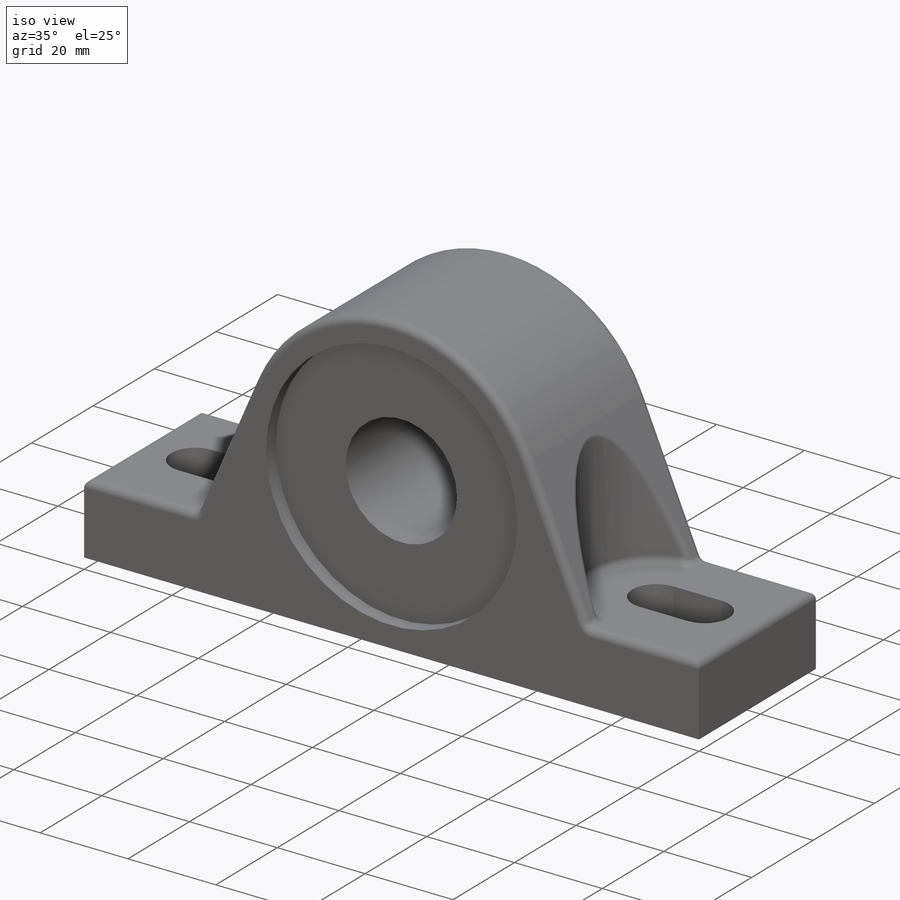
[diagram: iso view]
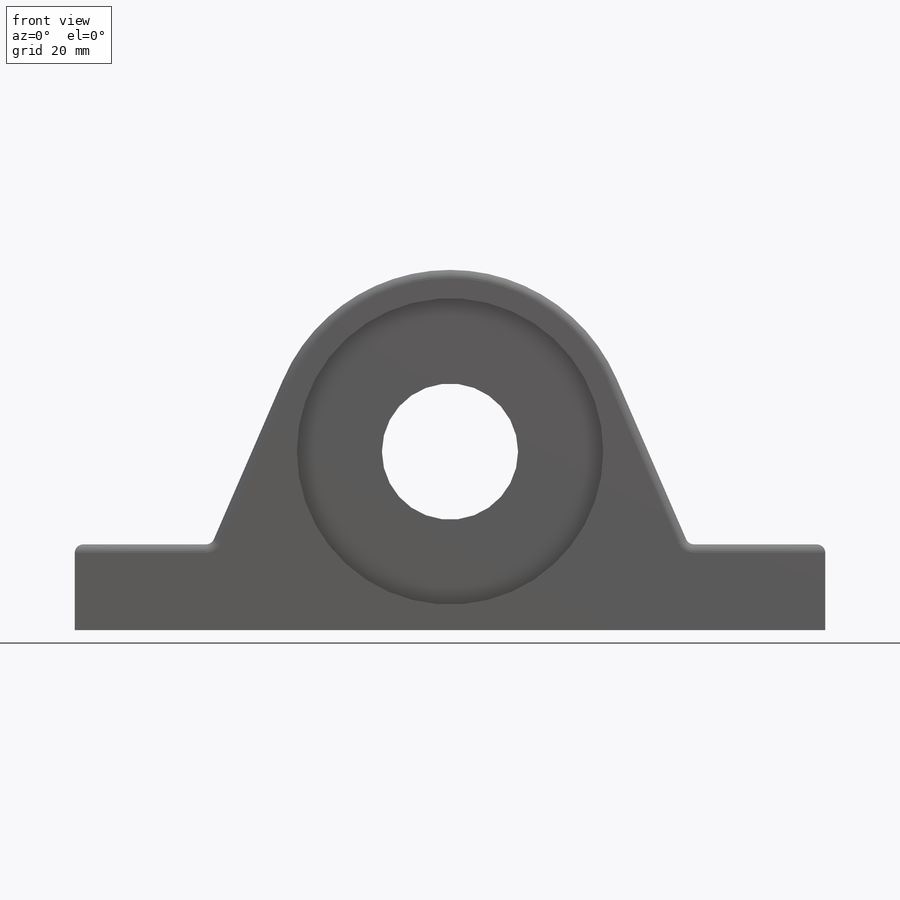
[diagram: front view]
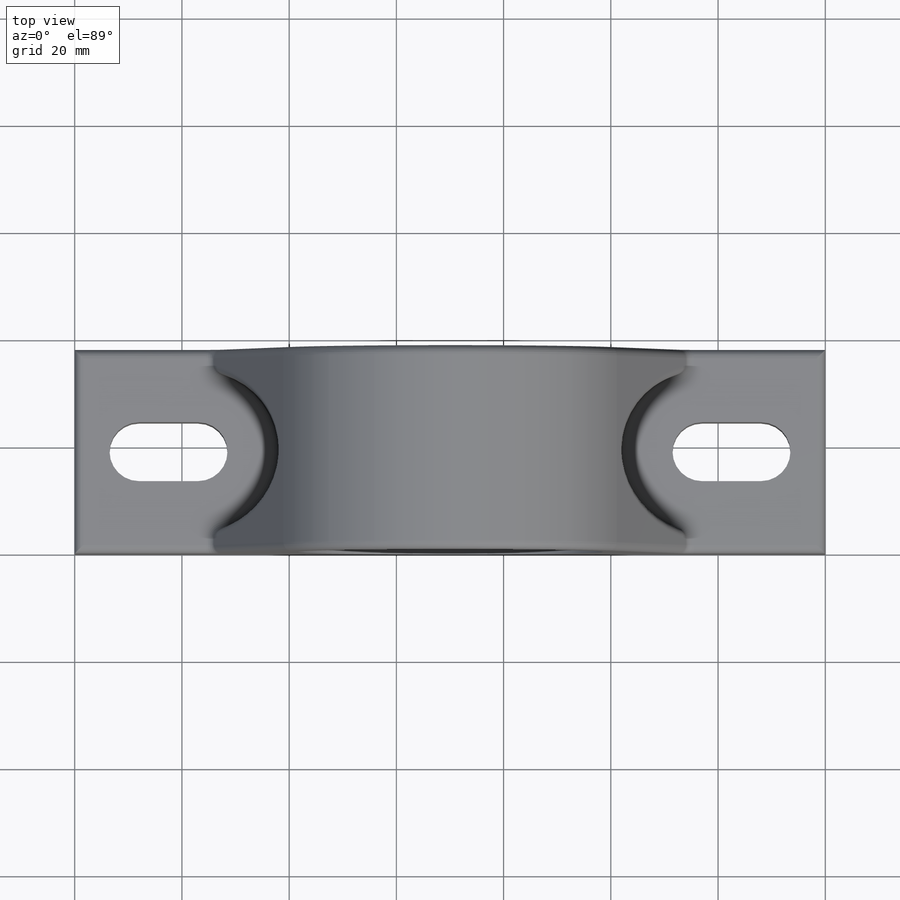
[diagram: top view]
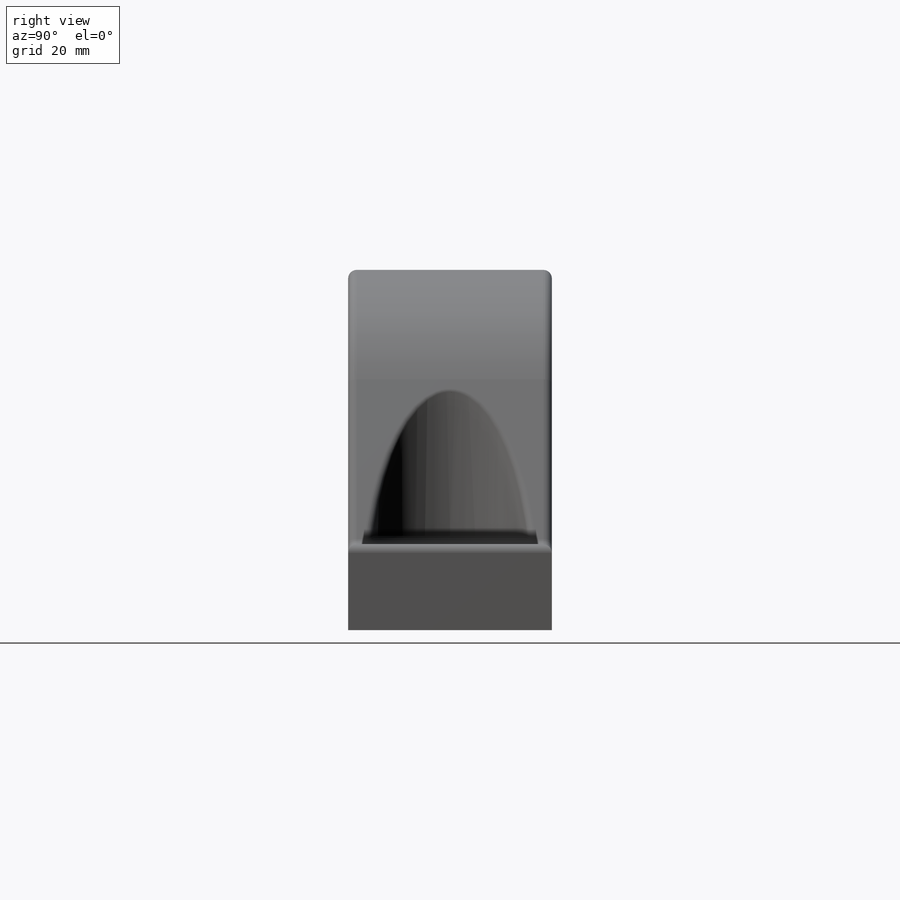
[diagram: right view]
SOLIDWORKS PART (.sldprt)
format: sldprt  version: not decoded by parser v0  size: 350,208 bytes
history: native  units: mm
features: sketch x6, cut_extrude x4, extrude x2, material x1, plane x1, mirror x1, fillet x1 (+11 scaffold rows collapsed)
feature tree (27):
  scaffold x11  (default folders/planes/origin — collapsed)
  material  "Material <not specified>"
  sketch  "Sketch1"  dims[D1=37.9984mm D2=140.0048mm]
  extrude  "Boss-Extrude1"  Depth=16.002mm
  sketch  "Sketch2"  dims[c1.D1=25.4mm c1.D2=25.4mm c1.D3=67.7926mm c2.D2=33.2994mm c2.D4=44.45mm]
  extrude  "Boss-Extrude2"  [1 undecoded]
  sketch  "Sketch4"  dims[c1.D1=~15.745447mm c1.D2=21.9964mm c2.D1=~7.324452mm c2.D2=5.4991mm c2.D3=5.4991mm c3.D1=10.9982mm c3.D2=10.9982mm c3.D3=52.5018mm]
  cut_extrude  "Cut-Extrude2"  Depth=76.6445mm
  sketch  "Sketch5"  dims[D1=9.525mm]
  cut_extrude  "Cut-Extrude3"  Depth=76.6445mm
  plane  "Plane1"
  mirror  "Mirror1"
  fillet  "Fillet1"  Radius=1.5875mm
  sketch  "Sketch6"  dims[D1=57.15mm]
  cut_extrude  "Cut-Extrude4"  Depth=3.175mm
  sketch  "Sketch7"  dims[D1=57.15mm D2=~17.75859mm]
  cut_extrude  "Cut-Extrude6"  Depth=3.175mm
decode coverage: 12 of 14 modeling features carry decoded parameters
note: ~ marks probable driven/reference dimensions
note: 1 parameter value undecoded
note: suppression state not decoded; provenance and decode notes live in map.json
